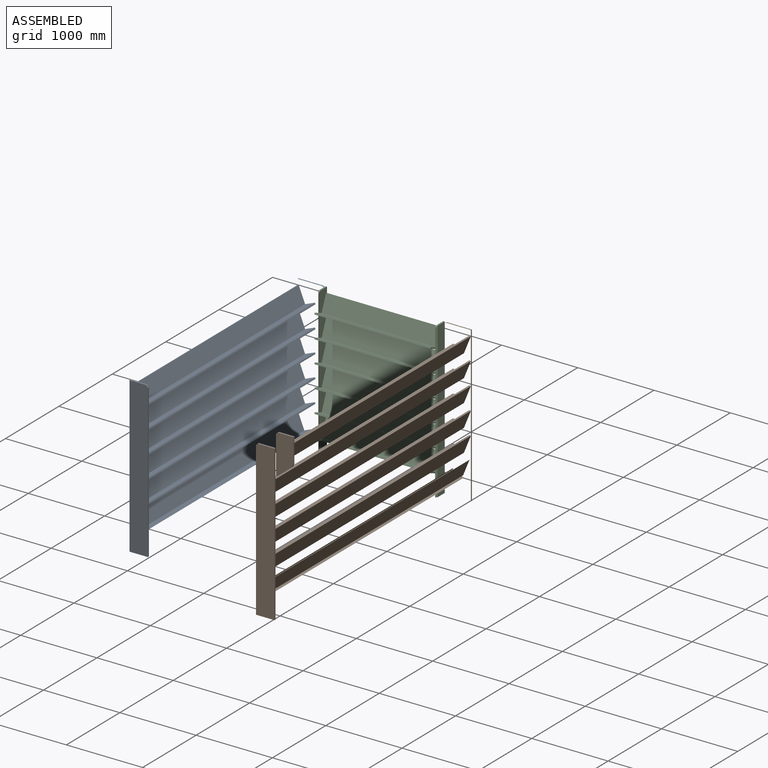
[diagram: assembled view]
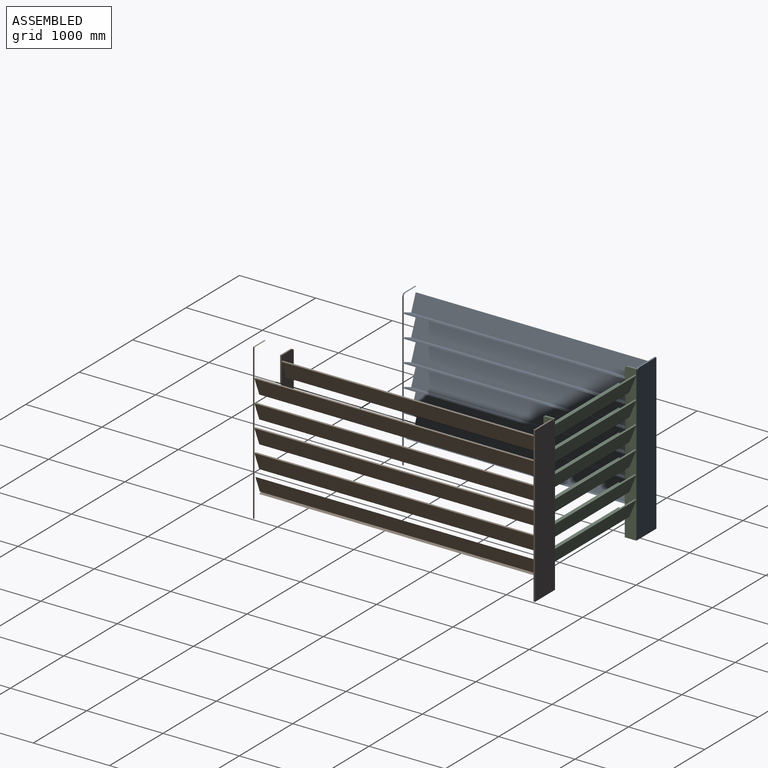
[diagram: assembled view, second angle]
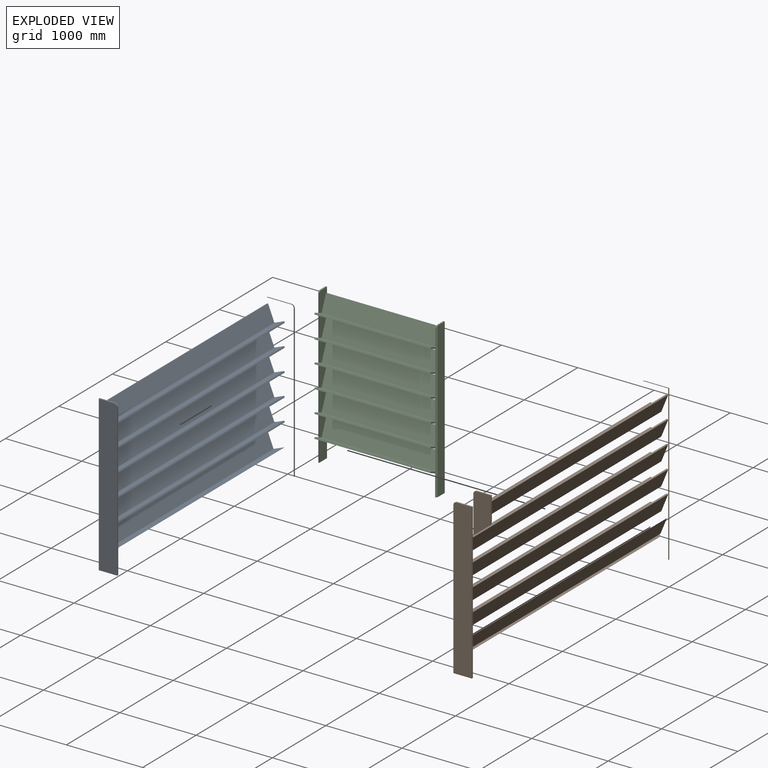
[diagram: exploded view]
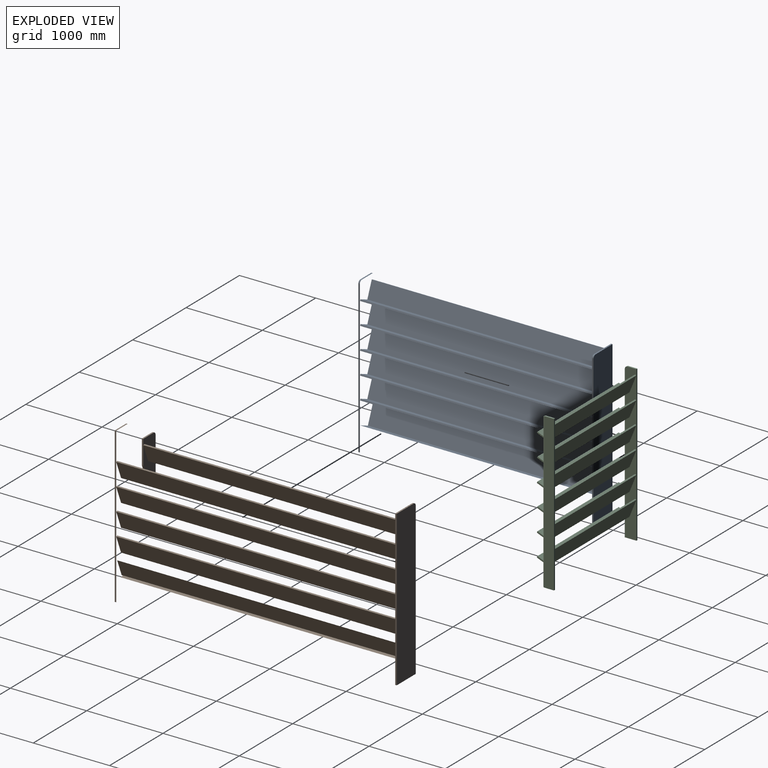
[diagram: exploded view, second angle]
ASSEMBLY  parts=3 mates=6
PART A: 50 faces, bbox 355.6x3162.3x2032 mm
  f0: plane 1993.9x19.05mm, normal (1,0,0), area 37983.8mm2, adj f3,f4,f5,f6
  f1: plane 317.5x19.05mm, normal (0,0,1), area 6048.4mm2, adj f2,f4,f5,f6
  f2: plane 2032x19.05mm, normal (-1,0,0), area 38709.6mm2, adj f1,f3,f4,f5
  f3: plane 355.6x19.05mm, normal (0,0,-1), area 6774.2mm2, adj f0,f2,f4,f5
  f4: plane 2032x355.6mm, normal (0,1,0), area 722267.7mm2, adj f0,f1,f2,f3,f6
  f5: plane 2032x355.6mm, normal (0,-1,0), area 678719.4mm2, adj f0,f1,f2,f3,f6,f7,f8,f9
  f6: cylinder r=38.1mm len=38.1mm, axis (0,-1,0), area 1140.1mm2, adj f0,f1,f4,f5
  f7: plane 3124.2x129.53mm, normal (-0.37,0,0.93), area 436450.7mm2, adj f5,f8,f12,f13
  f8: plane 3124.2x206.07mm, normal (0.93,0,0.37), area 694353.5mm2, adj f5,f7,f9,f13
  f9: plane 3124.2x17.66mm, normal (-0.37,0,0.93), area 59516mm2, adj f5,f8,f10,f13
  f10: plane 3124.2x223.73mm, normal (-0.93,0,-0.37), area 753869.5mm2, adj f5,f9,f11,f13
  f11: plane 3124.2x147.19mm, normal (0.37,0,-0.93), area 495966.8mm2, adj f5,f10,f12,f13
  f12: plane 3124.2x17.66mm, normal (0.93,0,0.37), area 59516mm2, adj f5,f7,f11,f13
  f13: plane 2032x241.3mm, normal (0,1,0), area 446461.8mm2, adj f7,f8,f9,f10,f11,f12,f14,f15
  f14: plane 3124.2x129.53mm, normal (-0.37,0,0.93), area 436450.7mm2, adj f5,f13,f15,f19
  f15: plane 3124.2x206.07mm, normal (0.93,0,0.37), area 694353.5mm2, adj f5,f13,f14,f16
  f16: plane 3124.2x17.66mm, normal (-0.37,0,0.93), area 59516mm2, adj f5,f13,f15,f17
  f17: plane 3124.2x223.73mm, normal (-0.93,0,-0.37), area 753869.5mm2, adj f5,f13,f16,f18
  f18: plane 3124.2x147.19mm, normal (0.37,0,-0.93), area 495966.8mm2, adj f5,f13,f17,f19
  f19: plane 3124.2x17.66mm, normal (0.93,0,0.37), area 59516mm2, adj f5,f13,f14,f18
  f20: plane 3124.2x129.53mm, normal (-0.37,0,0.93), area 436450.7mm2, adj f5,f13,f21,f25
  f21: plane 3124.2x206.07mm, normal (0.93,0,0.37), area 694353.5mm2, adj f5,f13,f20,f22
  f22: plane 3124.2x17.66mm, normal (-0.37,0,0.93), area 59516mm2, adj f5,f13,f21,f23
  f23: plane 3124.2x223.73mm, normal (-0.93,0,-0.37), area 753869.5mm2, adj f5,f13,f22,f24
  f24: plane 3124.2x147.19mm, normal (0.37,0,-0.93), area 495966.8mm2, adj f5,f13,f23,f25
  f25: plane 3124.2x17.66mm, normal (0.93,0,0.37), area 59516mm2, adj f5,f13,f20,f24
  f26: plane 3124.2x129.53mm, normal (-0.37,0,0.93), area 436450.7mm2, adj f5,f13,f27,f31
  f27: plane 3124.2x206.07mm, normal (0.93,0,0.37), area 694353.5mm2, adj f5,f13,f26,f28
  f28: plane 3124.2x17.66mm, normal (-0.37,0,0.93), area 59516mm2, adj f5,f13,f27,f29
  f29: plane 3124.2x223.73mm, normal (-0.93,0,-0.37), area 753869.5mm2, adj f5,f13,f28,f30
  f30: plane 3124.2x147.19mm, normal (0.37,0,-0.93), area 495966.8mm2, adj f5,f13,f29,f31
  f31: plane 3124.2x17.66mm, normal (0.93,0,0.37), area 59516mm2, adj f5,f13,f26,f30
  f32: plane 3124.2x129.53mm, normal (-0.37,0,0.93), area 436450.7mm2, adj f5,f13,f33,f37
  f33: plane 3124.2x206.07mm, normal (0.93,0,0.37), area 694353.5mm2, adj f5,f13,f32,f34
  f34: plane 3124.2x17.66mm, normal (-0.37,0,0.93), area 59516mm2, adj f5,f13,f33,f35
  f35: plane 3124.2x223.73mm, normal (-0.93,0,-0.37), area 753869.5mm2, adj f5,f13,f34,f36
  f36: plane 3124.2x147.19mm, normal (0.37,0,-0.93), area 495966.8mm2, adj f5,f13,f35,f37
  f37: plane 3124.2x17.66mm, normal (0.93,0,0.37), area 59516mm2, adj f5,f13,f32,f36
  f38: plane 3124.2x129.53mm, normal (-0.37,0,0.93), area 436450.7mm2, adj f5,f13,f39,f43
  f39: plane 3124.2x206.07mm, normal (0.93,0,0.37), area 694353.5mm2, adj f5,f13,f38,f40
  f40: plane 3124.2x17.66mm, normal (-0.37,0,0.93), area 59516mm2, adj f5,f13,f39,f41
  f41: plane 3124.2x223.73mm, normal (-0.93,0,-0.37), area 753869.5mm2, adj f5,f13,f40,f42
  f42: plane 3124.2x147.19mm, normal (0.37,0,-0.93), area 495966.8mm2, adj f5,f13,f41,f43
  f43: plane 3124.2x17.66mm, normal (0.93,0,0.37), area 59516mm2, adj f5,f13,f38,f42
  f44: plane 2032x19.05mm, normal (-1,0,0), area 38709.6mm2, adj f13,f45,f47,f48
  f45: plane 241.3x19.05mm, normal (0,0,-1), area 4596.8mm2, adj f13,f44,f46,f48
  f46: plane 1993.9x19.05mm, normal (1,0,0), area 37983.8mm2, adj f13,f45,f48,f49
  f47: plane 203.2x19.05mm, normal (0,0,1), area 3871mm2, adj f13,f44,f48,f49
  f48: plane 2032x241.3mm, normal (0,-1,0), area 490010.1mm2, adj f44,f45,f46,f47,f49
  f49: cylinder r=38.1mm len=38.1mm, axis (0,1,0), area 1140.1mm2, adj f13,f46,f47,f48
PART B: 60 faces, bbox 355.6x3695.7x2032 mm
  f0: plane 1993.9x19.05mm, normal (1,0,0), area 37983.8mm2, adj f3,f4,f5,f6
  f1: plane 203.2x19.05mm, normal (0,0,1), area 3871mm2, adj f2,f4,f5,f6
  f2: plane 2032x19.05mm, normal (-1,0,0), area 38709.6mm2, adj f1,f3,f4,f5
  f3: plane 241.3x19.05mm, normal (0,0,-1), area 4596.8mm2, adj f0,f2,f4,f5
  f4: plane 2032x241.3mm, normal (0,1,0), area 490010.1mm2, adj f0,f1,f2,f3,f6
  f5: plane 2032x241.3mm, normal (0,-1,0), area 453719.8mm2, adj f0,f1,f2,f3,f6,f7,f8,f9
  f6: cylinder r=38.1mm len=38.1mm, axis (0,-1,0), area 1140.1mm2, adj f0,f1,f4,f5
  f7: plane 3657.6x129.53mm, normal (-0.37,0,0.93), area 510966.7mm2, adj f5,f8,f12,f13
  f8: plane 3657.6x206.07mm, normal (0.93,0,0.37), area 812901.6mm2, adj f5,f7,f9,f13
  f9: plane 3657.6x17.66mm, normal (-0.37,0,0.93), area 69677.3mm2, adj f5,f8,f10,f13
  f10: plane 3657.6x223.73mm, normal (-0.93,0,-0.37), area 882578.9mm2, adj f5,f9,f11,f13
  f11: plane 3657.6x147.19mm, normal (0.37,0,-0.93), area 580644mm2, adj f5,f10,f12,f13
  f12: plane 3657.6x17.66mm, normal (0.93,0,0.37), area 69677.3mm2, adj f5,f7,f11,f13
  f13: plane 2032x355.6mm, normal (0,1,0), area 678719.4mm2, adj f7,f8,f9,f10,f11,f12,f14,f15
  f14: plane 3657.6x129.53mm, normal (-0.37,0,0.93), area 510966.7mm2, adj f5,f13,f15,f19
  f15: plane 3657.6x206.07mm, normal (0.93,0,0.37), area 812901.6mm2, adj f5,f13,f14,f16
  f16: plane 3657.6x17.66mm, normal (-0.37,0,0.93), area 69677.3mm2, adj f5,f13,f15,f17
  f17: plane 3657.6x223.73mm, normal (-0.93,0,-0.37), area 882578.9mm2, adj f5,f13,f16,f18
  f18: plane 3657.6x147.19mm, normal (0.37,0,-0.93), area 580644mm2, adj f5,f13,f17,f19
  f19: plane 3657.6x17.66mm, normal (0.93,0,0.37), area 69677.3mm2, adj f5,f13,f14,f18
  f20: plane 3657.6x129.53mm, normal (-0.37,0,0.93), area 510966.7mm2, adj f5,f13,f21,f25
  f21: plane 3657.6x206.07mm, normal (0.93,0,0.37), area 812901.6mm2, adj f5,f13,f20,f22
  f22: plane 3657.6x17.66mm, normal (-0.37,0,0.93), area 69677.3mm2, adj f5,f13,f21,f23
  f23: plane 3657.6x223.73mm, normal (-0.93,0,-0.37), area 882578.9mm2, adj f5,f13,f22,f24
  f24: plane 3657.6x147.19mm, normal (0.37,0,-0.93), area 580644mm2, adj f5,f13,f23,f25
  f25: plane 3657.6x17.66mm, normal (0.93,0,0.37), area 69677.3mm2, adj f5,f13,f20,f24
  f26: plane 3657.6x129.53mm, normal (-0.37,0,0.93), area 510966.7mm2, adj f5,f13,f27,f31
  f27: plane 3657.6x206.07mm, normal (0.93,0,0.37), area 812901.6mm2, adj f5,f13,f26,f28
  f28: plane 3657.6x17.66mm, normal (-0.37,0,0.93), area 69677.3mm2, adj f5,f13,f27,f29
  f29: plane 3657.6x223.73mm, normal (-0.93,0,-0.37), area 882578.9mm2, adj f5,f13,f28,f30
  f30: plane 3657.6x147.19mm, normal (0.37,0,-0.93), area 580644mm2, adj f5,f13,f29,f31
  f31: plane 3657.6x17.66mm, normal (0.93,0,0.37), area 69677.3mm2, adj f5,f13,f26,f30
  f32: plane 3302x206.07mm, normal (0.93,0,0.37), area 733869.5mm2, adj f13,f33,f35,f42
  f33: plane 3657.6x129.53mm, normal (-0.37,0,0.93), area 508343.4mm2, adj f5,f13,f32,f34,f38,f39,f41,f42
  f34: plane 336.55x206.07mm, normal (0.93,0,0.37), area 74798.2mm2, adj f5,f33,f35,f41
  f35: plane 3657.6x17.66mm, normal (-0.37,0,0.93), area 69670mm2, adj f5,f13,f32,f34,f36,f40,f41,f42
  f36: plane 3657.6x223.73mm, normal (-0.93,0,-0.37), area 882578.9mm2, adj f5,f13,f35,f37
  f37: plane 3657.6x147.19mm, normal (0.37,0,-0.93), area 580644mm2, adj f5,f13,f36,f38
  f38: plane 3657.6x17.66mm, normal (0.93,0,0.37), area 69677.3mm2, adj f5,f13,f33,f37
  f39: plane 478.6x19.05mm, normal (1,0,0), area 9117.4mm2, adj f33,f41,f42,f43,f56,f59
  f40: plane 42.84x19.05mm, normal (-0.93,0,-0.37), area 880.3mm2, adj f35,f41,f42,f58
  f41: plane 568.29x228.6mm, normal (0,1,0), area 113720.3mm2, adj f33,f34,f35,f39,f40,f57,f58,f59
  f42: plane 493.57x228.6mm, normal (0,-1,0), area 59776.6mm2, adj f32,f33,f35,f39,f40,f47,f48,f58
  f43: plane 21.29x8.98mm, normal (0,1,0), area 111.3mm2, adj f39,f44,f48,f49
  f44: plane 3302x129.53mm, normal (-0.37,0,0.93), area 461289.4mm2, adj f13,f43,f45,f49,f56
  f45: plane 3302x206.07mm, normal (0.93,0,0.37), area 733869.5mm2, adj f13,f44,f46,f56
  f46: plane 3302x17.66mm, normal (-0.37,0,0.93), area 62903.1mm2, adj f13,f45,f47,f56
  f47: plane 3302x223.73mm, normal (-0.93,0,-0.37), area 796772.6mm2, adj f13,f42,f46,f48
  f48: plane 3302x147.19mm, normal (0.37,0,-0.93), area 524192.5mm2, adj f13,f42,f43,f47,f49
  f49: plane 3302x17.66mm, normal (0.93,0,0.37), area 62903.1mm2, adj f13,f43,f44,f48
  f50: plane 2032x19.05mm, normal (-1,0,0), area 38709.6mm2, adj f13,f51,f53,f54
  f51: plane 355.6x19.05mm, normal (0,0,-1), area 6774.2mm2, adj f13,f50,f52,f54
  f52: plane 1993.9x19.05mm, normal (1,0,0), area 37983.8mm2, adj f13,f51,f54,f55
  f53: plane 317.5x19.05mm, normal (0,0,1), area 6048.4mm2, adj f13,f50,f54,f55
  f54: plane 2032x355.6mm, normal (0,-1,0), area 722267.7mm2, adj f50,f51,f52,f53,f55
  f55: cylinder r=38.1mm len=38.1mm, axis (0,1,0), area 1140.1mm2, adj f13,f52,f53,f54
  f56: plane 273.65x228.6mm, normal (0,-1,0), area 46796.9mm2, adj f39,f44,f45,f46,f57,f58,f59
  f57: plane 190.5x19.05mm, normal (0,0,1), area 3629mm2, adj f41,f56,f58,f59
  f58: plane 319.52x19.05mm, normal (-1,0,0), area 6086.9mm2, adj f40,f41,f42,f56,f57
  f59: cylinder r=38.1mm len=38.1mm, axis (0,-1,0), area 1140.1mm2, adj f39,f41,f56,f57
PART C: 74 faces, bbox 237.6x1562.1x2032 mm
  f0: plane 493.57x152.4mm, normal (0,-1,0), area 39322mm2, adj f7,f12,f13,f14,f15,f26,f27
  f1: plane 493.57x152.4mm, normal (0,-1,0), area 39322mm2, adj f7,f12,f23,f24,f25,f35,f36
  f2: plane 493.57x152.4mm, normal (0,-1,0), area 39322mm2, adj f7,f12,f32,f33,f34,f44,f45
  f3: plane 493.57x152.4mm, normal (0,-1,0), area 39322mm2, adj f7,f12,f41,f42,f43,f53,f54
  f4: plane 493.57x152.4mm, normal (0,-1,0), area 39322mm2, adj f7,f12,f50,f51,f52,f62,f63
  f5: plane 273.65x152.4mm, normal (0,-1,0), area 28702.6mm2, adj f6,f7,f11,f12,f59,f60,f61
  f6: plane 114.3x19.05mm, normal (0,0,1), area 2177.4mm2, adj f5,f7,f9,f11
  f7: plane 2032x19.05mm, normal (-1,0,0), area 38709.6mm2, adj f0,f1,f2,f3,f4,f5,f6,f8
  f8: plane 152.4x19.05mm, normal (0,0,-1), area 2721.8mm2, adj f7,f9,f10,f12
  f9: plane 2032x133.35mm, normal (0,1,0), area 270935.7mm2, adj f6,f7,f8,f11,f12
  f10: plane 484.08x152.4mm, normal (0,-1,0), area 50565.8mm2, adj f7,f8,f12,f16,f17
  f11: cylinder r=38.1mm len=38.1mm, axis (0,-1,0), area 643mm2, adj f5,f6,f9,f12
  f12: plane 2026.9x19.05mm, normal (0.71,0.71,0), area 54347.6mm2, adj f0,f1,f2,f3,f4,f5,f8,f9
  f13: plane 1524x129.53mm, normal (-0.37,0,0.93), area 212902.8mm2, adj f0,f14,f18,f19,f20,f21
  f14: plane 1524x206.07mm, normal (0.93,0,0.37), area 338709mm2, adj f0,f13,f15,f21
  f15: plane 1524x17.66mm, normal (-0.37,0,0.93), area 29032.2mm2, adj f0,f14,f16,f21
  f16: plane 1524x223.73mm, normal (-0.93,0,-0.37), area 367741.2mm2, adj f10,f15,f17,f22
  f17: plane 1524x147.19mm, normal (0.37,0,-0.93), area 241935mm2, adj f10,f16,f18,f19,f20,f22
  f18: plane 1524x17.66mm, normal (0.93,0,0.37), area 29032.2mm2, adj f13,f17,f19,f20
  f19: plane 85.18x52.08mm, normal (0,-1,0), area 1676.9mm2, adj f13,f17,f18,f73
  f20: plane 85.18x52.08mm, normal (0,1,0), area 1676.9mm2, adj f12,f13,f17,f18
  f21: plane 493.57x152.4mm, normal (0,1,0), area 39322mm2, adj f13,f14,f15,f26,f27,f68,f73
  f22: plane 484.08x152.4mm, normal (0,1,0), area 50565.8mm2, adj f16,f17,f68,f69,f73
  f23: plane 1524x129.53mm, normal (-0.37,0,0.93), area 212902.8mm2, adj f1,f24,f28,f29,f30,f31
  f24: plane 1524x206.07mm, normal (0.93,0,0.37), area 338709mm2, adj f1,f23,f25,f31
  f25: plane 1524x17.66mm, normal (-0.37,0,0.93), area 29032.2mm2, adj f1,f24,f26,f31
  f26: plane 1524x223.73mm, normal (-0.93,0,-0.37), area 367741.2mm2, adj f0,f21,f25,f27
  f27: plane 1524x147.19mm, normal (0.37,0,-0.93), area 241935mm2, adj f0,f21,f26,f28,f29,f30
  f28: plane 1524x17.66mm, normal (0.93,0,0.37), area 29032.2mm2, adj f23,f27,f29,f30
  f29: plane 85.18x52.08mm, normal (0,-1,0), area 1676.9mm2, adj f23,f27,f28,f73
  f30: plane 85.18x52.08mm, normal (0,1,0), area 1676.9mm2, adj f12,f23,f27,f28
  f31: plane 493.57x152.4mm, normal (0,1,0), area 39322mm2, adj f23,f24,f25,f35,f36,f68,f73
  f32: plane 1524x129.53mm, normal (-0.37,0,0.93), area 212902.8mm2, adj f2,f33,f37,f38,f39,f40
  f33: plane 1524x206.07mm, normal (0.93,0,0.37), area 338709mm2, adj f2,f32,f34,f40
  f34: plane 1524x17.66mm, normal (-0.37,0,0.93), area 29032.2mm2, adj f2,f33,f35,f40
  f35: plane 1524x223.73mm, normal (-0.93,0,-0.37), area 367741.2mm2, adj f1,f31,f34,f36
  f36: plane 1524x147.19mm, normal (0.37,0,-0.93), area 241935mm2, adj f1,f31,f35,f37,f38,f39
  f37: plane 1524x17.66mm, normal (0.93,0,0.37), area 29032.2mm2, adj f32,f36,f38,f39
  f38: plane 85.18x52.08mm, normal (0,-1,0), area 1676.9mm2, adj f32,f36,f37,f73
  f39: plane 85.18x52.08mm, normal (0,1,0), area 1676.9mm2, adj f12,f32,f36,f37
  f40: plane 493.57x152.4mm, normal (0,1,0), area 39322mm2, adj f32,f33,f34,f44,f45,f68,f73
  f41: plane 1524x129.53mm, normal (-0.37,0,0.93), area 212902.8mm2, adj f3,f42,f46,f47,f48,f49
  f42: plane 1524x206.07mm, normal (0.93,0,0.37), area 338709mm2, adj f3,f41,f43,f49
  f43: plane 1524x17.66mm, normal (-0.37,0,0.93), area 29032.2mm2, adj f3,f42,f44,f49
  f44: plane 1524x223.73mm, normal (-0.93,0,-0.37), area 367741.2mm2, adj f2,f40,f43,f45
  f45: plane 1524x147.19mm, normal (0.37,0,-0.93), area 241935mm2, adj f2,f40,f44,f46,f47,f48
  f46: plane 1524x17.66mm, normal (0.93,0,0.37), area 29032.2mm2, adj f41,f45,f47,f48
  f47: plane 85.18x52.08mm, normal (0,-1,0), area 1676.9mm2, adj f41,f45,f46,f73
  f48: plane 85.18x52.08mm, normal (0,1,0), area 1676.9mm2, adj f12,f41,f45,f46
  f49: plane 493.57x152.4mm, normal (0,1,0), area 39322mm2, adj f41,f42,f43,f53,f54,f68,f73
  f50: plane 1524x129.53mm, normal (-0.37,0,0.93), area 212902.8mm2, adj f4,f51,f55,f56,f57,f58
  f51: plane 1524x206.07mm, normal (0.93,0,0.37), area 338709mm2, adj f4,f50,f52,f58
  f52: plane 1524x17.66mm, normal (-0.37,0,0.93), area 29032.2mm2, adj f4,f51,f53,f58
  f53: plane 1524x223.73mm, normal (-0.93,0,-0.37), area 367741.2mm2, adj f3,f49,f52,f54
  f54: plane 1524x147.19mm, normal (0.37,0,-0.93), area 241935mm2, adj f3,f49,f53,f55,f56,f57
  f55: plane 1524x17.66mm, normal (0.93,0,0.37), area 29032.2mm2, adj f50,f54,f56,f57
  f56: plane 85.18x52.08mm, normal (0,-1,0), area 1676.9mm2, adj f50,f54,f55,f73
  f57: plane 85.18x52.08mm, normal (0,1,0), area 1676.9mm2, adj f12,f50,f54,f55
  f58: plane 493.57x152.4mm, normal (0,1,0), area 39322mm2, adj f50,f51,f52,f62,f63,f68,f73
  f59: plane 1524x129.53mm, normal (-0.37,0,0.93), area 212902.8mm2, adj f5,f60,f64,f65,f66,f67
  f60: plane 1524x206.07mm, normal (0.93,0,0.37), area 338709mm2, adj f5,f59,f61,f67
  f61: plane 1524x17.66mm, normal (-0.37,0,0.93), area 29032.2mm2, adj f5,f60,f62,f67
  f62: plane 1524x223.73mm, normal (-0.93,0,-0.37), area 367741.2mm2, adj f4,f58,f61,f63
  f63: plane 1524x147.19mm, normal (0.37,0,-0.93), area 241935mm2, adj f4,f58,f62,f64,f65,f66
  f64: plane 1524x17.66mm, normal (0.93,0,0.37), area 29032.2mm2, adj f59,f63,f65,f66
  f65: plane 85.18x52.08mm, normal (0,-1,0), area 1676.9mm2, adj f59,f63,f64,f73
  f66: plane 85.18x52.08mm, normal (0,1,0), area 1676.9mm2, adj f12,f59,f63,f64
  f67: plane 273.65x152.4mm, normal (0,1,0), area 28702.6mm2, adj f59,f60,f61,f68,f70,f72,f73
  f68: plane 2032x19.05mm, normal (-1,0,0), area 38709.6mm2, adj f21,f22,f31,f40,f49,f58,f67,f69
  f69: plane 152.4x19.05mm, normal (0,0,-1), area 2721.8mm2, adj f22,f68,f71,f73
  f70: plane 114.3x19.05mm, normal (0,0,1), area 2177.4mm2, adj f67,f68,f71,f72
  f71: plane 2032x133.35mm, normal (0,-1,0), area 270935.7mm2, adj f68,f69,f70,f72,f73
  f72: cylinder r=38.1mm len=38.1mm, axis (0,1,0), area 643mm2, adj f67,f70,f71,f73
  f73: plane 2026.9x19.05mm, normal (0.71,-0.71,0), area 54347.6mm2, adj f19,f21,f22,f29,f31,f38,f40,f47
PLACE A t=(-1045.04,-573.15,-288.13)mm
PLACE B rot(axis=(0,0,1),180deg) t=(974.26,-4230.75,-288.13)mm
PLACE C rot(axis=(0,0,-1),90deg) t=(726.61,-681.1,-288.13)mm fixed
MATE planar C.f8 <-> B.f51  axis (0,0,-1) through (735.92,-625.65,-1304.13)mm
MATE planar B.f52 <-> C.f11  axis (-1,0,0) through (745.66,-563.63,-307.18)mm
MATE planar C.f68 <-> A.f4  axis (0,1,0) through (-806.92,-554.1,-288.13)mm
MATE planar A.f0 <-> C.f71  axis (1,0,0) through (-816.44,-554.1,-1304.13)mm
MATE planar C.f7 <-> B.f54  axis (0,1,0) through (736.13,-554.1,-288.13)mm
MATE planar C.f69 <-> A.f3  axis (0,0,-1) through (-806.71,-625.65,-1304.13)mm
